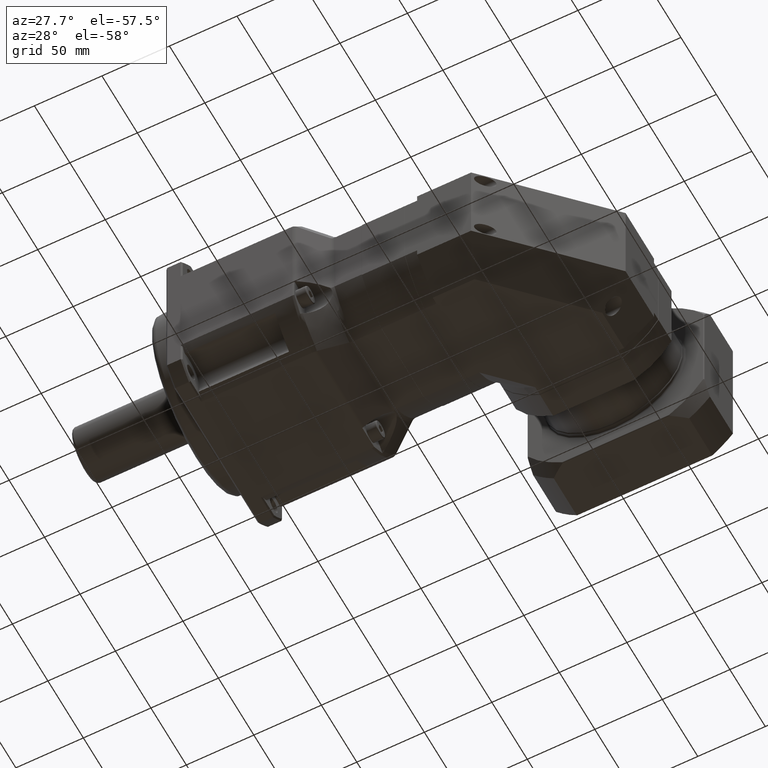
[diagram: clean part render]
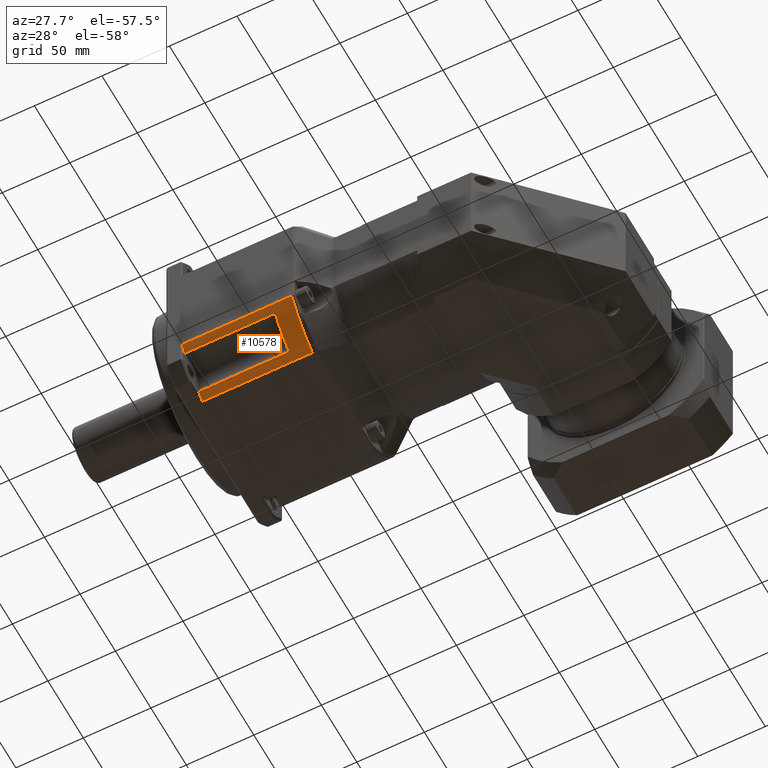
[diagram: same view with one face highlighted and labeled with its STEP entity id]
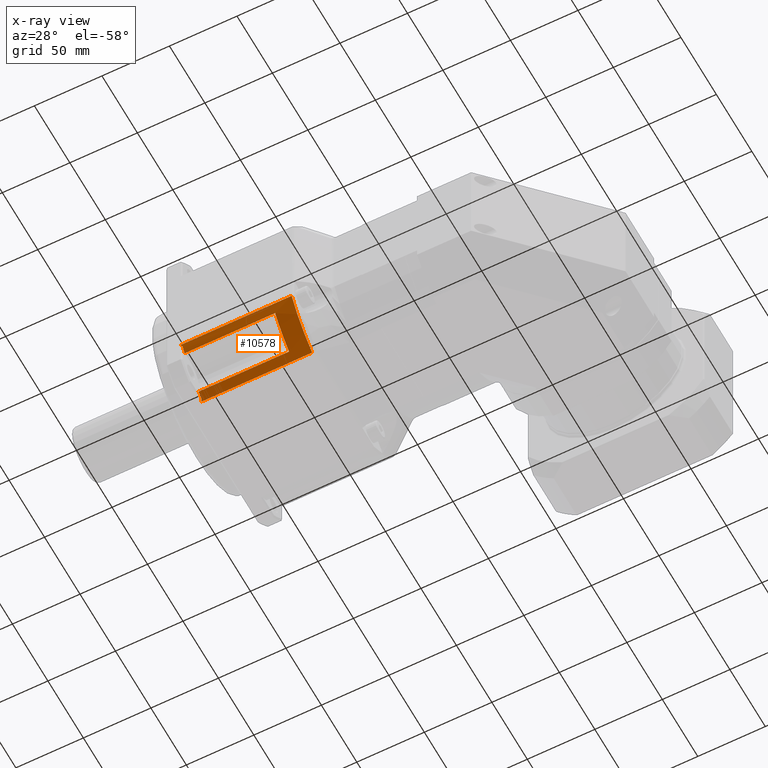
[diagram: x-ray of the same camera — body ghosted, the highlighted face saturated]
A machine part, auxiliary view. The second image highlights one B-rep face of the part: STEP entity #10578.
The next image is the same camera in x-ray: the body ghosted, the highlighted face saturated — about 0% of this face is hidden behind the body in this view.
In plain terms, the highlighted cylindrical surface (partial cylindrical patch) has radius 82.5 mm, axis along (-1, -0, 0).
Its self-contained STEP definition (entity closure, byte-faithful):
#29=ELLIPSE('',#11642,116.67261889578,82.5);
#30=ELLIPSE('',#11644,116.67261889578,82.5);
#148=B_SPLINE_CURVE_WITH_KNOTS('',3,(#17757,#17758,#17759,#17760,#17761),
 .UNSPECIFIED.,.F.,.F.,(4,1,4),(0.0230192133704972,1.69216014141733,3.91443610026194),
 .UNSPECIFIED.);
#809=LINE('',#17487,#1337);
#817=LINE('',#17523,#1345);
#843=LINE('',#17717,#1371);
#844=LINE('',#17721,#1372);
#1337=VECTOR('',#13958,82.1624407477355);
#1345=VECTOR('',#13986,82.1624407477355);
#1371=VECTOR('',#14120,67.);
#1372=VECTOR('',#14123,67.);
#2750=FACE_OUTER_BOUND('',#3728,.T.);
#3728=EDGE_LOOP('',(#8479,#8480,#8481,#8482,#8483,#8484,#8485,#8486,#8487,
#8488));
#4393=CIRCLE('',#11713,82.5);
#4394=CIRCLE('',#11714,82.5);
#4400=CIRCLE('',#11724,82.5);
#5101=VERTEX_POINT('',#17481);
#5102=VERTEX_POINT('',#17486);
#5105=VERTEX_POINT('',#17494);
#5108=VERTEX_POINT('',#17504);
#5109=VERTEX_POINT('',#17506);
#5112=VERTEX_POINT('',#17522);
#5161=VERTEX_POINT('',#17715);
#5162=VERTEX_POINT('',#17716);
#5163=VERTEX_POINT('',#17718);
#5164=VERTEX_POINT('',#17720);
#6239=EDGE_CURVE('',#5101,#5102,#809,.T.);
#6243=EDGE_CURVE('',#5102,#5105,#29,.F.);
#6247=EDGE_CURVE('',#5108,#5109,#30,.F.);
#6254=EDGE_CURVE('',#5109,#5112,#817,.T.);
#6324=EDGE_CURVE('',#5161,#5162,#843,.T.);
#6326=EDGE_CURVE('',#5164,#5163,#844,.T.);
#6332=EDGE_CURVE('',#5163,#5105,#4393,.T.);
#6333=EDGE_CURVE('',#5108,#5161,#4394,.T.);
#6342=EDGE_CURVE('',#5164,#5162,#4400,.T.);
#6343=EDGE_CURVE('',#5112,#5101,#148,.T.);
#8479=ORIENTED_EDGE('',*,*,#6324,.T.);
#8480=ORIENTED_EDGE('',*,*,#6342,.F.);
#8481=ORIENTED_EDGE('',*,*,#6326,.T.);
#8482=ORIENTED_EDGE('',*,*,#6332,.T.);
#8483=ORIENTED_EDGE('',*,*,#6243,.F.);
#8484=ORIENTED_EDGE('',*,*,#6239,.F.);
#8485=ORIENTED_EDGE('',*,*,#6343,.F.);
#8486=ORIENTED_EDGE('',*,*,#6254,.F.);
#8487=ORIENTED_EDGE('',*,*,#6247,.F.);
#8488=ORIENTED_EDGE('',*,*,#6333,.T.);
#9552=CYLINDRICAL_SURFACE('',#11723,82.5);
#10578=ADVANCED_FACE('',(#2750),#9552,.T.);
#11642=AXIS2_PLACEMENT_3D('',#17495,#13964,#13965);
#11644=AXIS2_PLACEMENT_3D('',#17507,#13970,#13971);
#11713=AXIS2_PLACEMENT_3D('',#17734,#14138,#14139);
#11714=AXIS2_PLACEMENT_3D('',#17735,#14140,#14141);
#11723=AXIS2_PLACEMENT_3D('',#17755,#14160,#14161);
#11724=AXIS2_PLACEMENT_3D('',#17756,#14162,#14163);
#13958=DIRECTION('',(-1.,-1.66533453693789E-16,7.9632751172749E-16));
#13964=DIRECTION('center_axis',(0.707106781186547,-4.6462850513703E-15,
-0.707106781186548));
#13965=DIRECTION('ref_axis',(0.707106781186548,5.01448278992081E-15,0.707106781186547));
#13970=DIRECTION('center_axis',(0.707106781186548,-0.707106781186547,4.3336372719316E-15));
#13971=DIRECTION('ref_axis',(0.707106781186547,0.707106781186548,-5.45981443910744E-15));
#13986=DIRECTION('',(1.,1.66533453693789E-16,-7.9632751172749E-16));
#14120=DIRECTION('',(1.,1.66533453693789E-16,-7.9632751172749E-16));
#14123=DIRECTION('',(-1.,-1.66533453693789E-16,7.9632751172749E-16));
#14138=DIRECTION('center_axis',(1.,1.66533453693789E-16,-7.9632751172749E-16));
#14139=DIRECTION('ref_axis',(7.96327511727489E-16,6.9250161160987E-15,1.));
#14140=DIRECTION('center_axis',(1.,1.66533453693789E-16,-7.9632751172749E-16));
#14141=DIRECTION('ref_axis',(7.96327511727489E-16,6.9250161160987E-15,1.));
#14160=DIRECTION('center_axis',(-1.,-1.66533453693789E-16,7.9632751172749E-16));
#14161=DIRECTION('ref_axis',(7.96327511727489E-16,6.9250161160987E-15,1.));
#14162=DIRECTION('center_axis',(-1.,-2.01613133174758E-19,2.48166054006035E-15));
#14163=DIRECTION('ref_axis',(2.48166054006035E-15,6.75848266240571E-15,
1.));
#17481=CARTESIAN_POINT('',(-130.069972436636,8.62695413946111,-185.027779989655));
#17486=CARTESIAN_POINT('',(-212.232413184371,8.62695413946099,-185.027779989655));
#17487=CARTESIAN_POINT('',(-144.232413184371,8.626954139461,-185.027779989656));
#17494=CARTESIAN_POINT('',(-211.232413184371,6.98120946511999,-184.027779989655));
#17495=CARTESIAN_POINT('Origin',(-141.232413184371,50.6418324565529,-114.027779989656));
#17504=CARTESIAN_POINT('',(-211.232413184371,-19.3581675434474,-157.688402981088));
#17506=CARTESIAN_POINT('',(-212.232413184371,-20.3581675434474,-156.042658306747));
#17507=CARTESIAN_POINT('Origin',(-141.232413184371,50.6418324565529,-114.027779989656));
#17522=CARTESIAN_POINT('',(-130.069972436636,-20.3581675434476,-156.042658306746));
#17523=CARTESIAN_POINT('',(-144.232413184371,-20.3581675434474,-156.042658306747));
#17715=CARTESIAN_POINT('',(-211.232413184371,-16.6801159420618,-161.714311251787));
#17716=CARTESIAN_POINT('',(-144.232413184371,-16.6801159420618,-161.714311251787));
#17717=CARTESIAN_POINT('',(-144.232413184371,-16.6801159420618,-161.714311251787));
#17718=CARTESIAN_POINT('',(-211.232413184371,2.95530119442039,-181.34972838827));
#17720=CARTESIAN_POINT('',(-144.232413184371,2.9553011944204,-181.34972838827));
#17721=CARTESIAN_POINT('',(-144.232413184371,2.95530119442036,-181.34972838827));
#17734=CARTESIAN_POINT('Origin',(-211.232413184371,50.6418324565529,-114.027779989656));
#17735=CARTESIAN_POINT('Origin',(-211.232413184371,50.6418324565529,-114.027779989656));
#17755=CARTESIAN_POINT('Origin',(-144.232413184371,50.6418324565529,-114.027779989656));
#17756=CARTESIAN_POINT('Origin',(-144.232413184371,50.6418324565529,-114.027779989656));
#17757=CARTESIAN_POINT('Ctrl Pts',(-130.069972437093,-20.3581671458521,
-156.042658146167));
#17758=CARTESIAN_POINT('Ctrl Pts',(-130.065672973837,-17.3418479982555,
-161.139806390701));
#17759=CARTESIAN_POINT('Ctrl Pts',(-130.059916906194,-9.02618036417836,
-172.264494266116));
#17760=CARTESIAN_POINT('Ctrl Pts',(-130.064248329681,1.84075194404117,-181.011786907047));
#17761=CARTESIAN_POINT('Ctrl Pts',(-130.069972439664,8.626955689572,-185.027777848975));